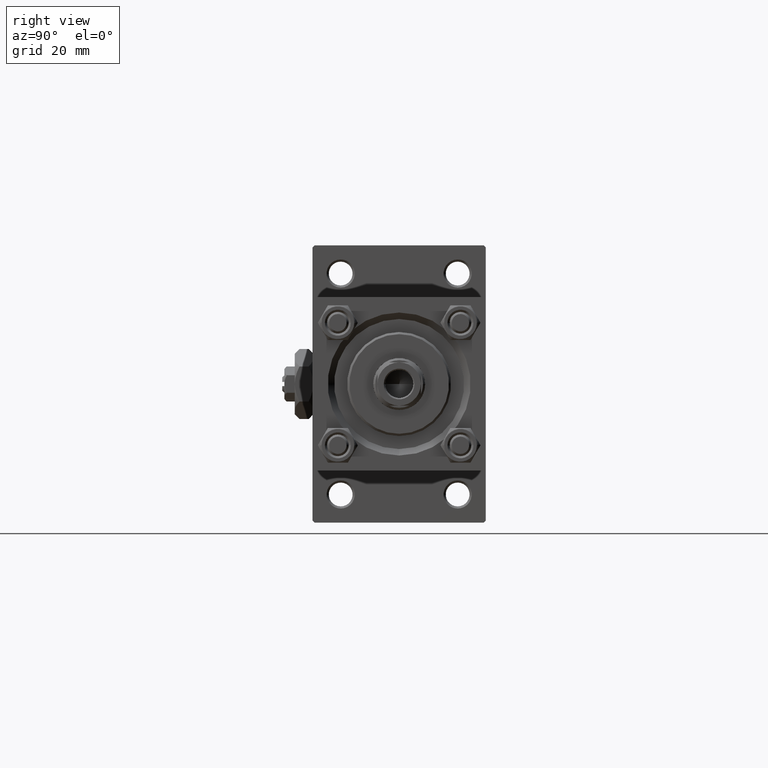
[diagram: clean part render]
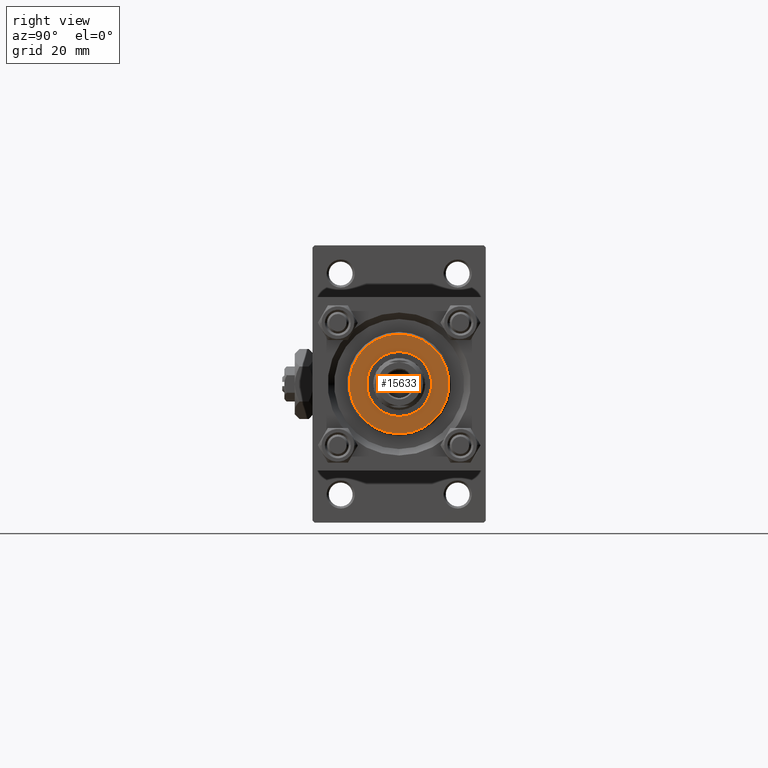
[diagram: same view with one face highlighted and labeled with its STEP entity id]
A machine part, right view. The second image highlights one B-rep face of the part: STEP entity #15633.
In plain terms, the highlighted planar face has unit normal (1, 0, 0).
Its self-contained STEP definition (entity closure, byte-faithful):
#2826 = ORIENTED_EDGE ( 'NONE', *, *, #48824, .T. ) ;
#3354 = CARTESIAN_POINT ( 'NONE',  ( -11.49999999999999645, 0.000000000000000000, 35.70000000000000284 ) ) ;
#5560 = DIRECTION ( 'NONE',  ( 1.000000000000000000, 0.000000000000000000, 0.000000000000000000 ) ) ;
#6486 = CARTESIAN_POINT ( 'NONE',  ( 11.49999999999999645, 1.438959988998139963E-15, 35.70000000000000284 ) ) ;
#6737 = ORIENTED_EDGE ( 'NONE', *, *, #31755, .F. ) ;
#7700 = AXIS2_PLACEMENT_3D ( 'NONE', #36107, #16521, #11845 ) ;
#8726 = DIRECTION ( 'NONE',  ( 1.000000000000000000, 0.000000000000000000, 0.000000000000000000 ) ) ;
#10145 = AXIS2_PLACEMENT_3D ( 'NONE', #26334, #10934, #26850 ) ;
#10934 = DIRECTION ( 'NONE',  ( 0.000000000000000000, 0.000000000000000000, 1.000000000000000000 ) ) ;
#11845 = DIRECTION ( 'NONE',  ( 1.000000000000000000, 0.000000000000000000, -0.000000000000000000 ) ) ;
#12037 = EDGE_CURVE ( 'NONE', #27153, #27952, #28430, .T. ) ;
#12619 = FACE_BOUND ( 'NONE', #19107, .T. ) ;
#15633 = ADVANCED_FACE ( 'NONE', ( #12619, #39502 ), #19654, .T. ) ;
#16521 = DIRECTION ( 'NONE',  ( 0.000000000000000000, 0.000000000000000000, 1.000000000000000000 ) ) ;
#19107 = EDGE_LOOP ( 'NONE', ( #6737, #37056 ) ) ;
#19231 = AXIS2_PLACEMENT_3D ( 'NONE', #29553, #25380, #5560 ) ;
#19654 = PLANE ( 'NONE',  #7700 ) ;
#20192 = CARTESIAN_POINT ( 'NONE',  ( 0.000000000000000000, 0.000000000000000000, 35.70000000000000284 ) ) ;
#20205 = CIRCLE ( 'NONE', #44400, 7.500000000000000888 ) ;
#22142 = CIRCLE ( 'NONE', #51313, 7.500000000000000888 ) ;
#22587 = CARTESIAN_POINT ( 'NONE',  ( -7.500000000000000888, 9.184850993605149917E-16, 35.70000000000000284 ) ) ;
#23590 = EDGE_CURVE ( 'NONE', #27461, #34823, #20205, .T. ) ;
#25380 = DIRECTION ( 'NONE',  ( 0.000000000000000000, 0.000000000000000000, 1.000000000000000000 ) ) ;
#26334 = CARTESIAN_POINT ( 'NONE',  ( 0.000000000000000000, 0.000000000000000000, 35.70000000000000284 ) ) ;
#26850 = DIRECTION ( 'NONE',  ( 1.000000000000000000, 0.000000000000000000, 0.000000000000000000 ) ) ;
#27153 = VERTEX_POINT ( 'NONE', #6486 ) ;
#27461 = VERTEX_POINT ( 'NONE', #22587 ) ;
#27952 = VERTEX_POINT ( 'NONE', #3354 ) ;
#28430 = CIRCLE ( 'NONE', #19231, 11.49999999999999645 ) ;
#28444 = CIRCLE ( 'NONE', #10145, 11.49999999999999645 ) ;
#29553 = CARTESIAN_POINT ( 'NONE',  ( 0.000000000000000000, 0.000000000000000000, 35.70000000000000284 ) ) ;
#29975 = CARTESIAN_POINT ( 'NONE',  ( 0.000000000000000000, 0.000000000000000000, 35.70000000000000284 ) ) ;
#31755 = EDGE_CURVE ( 'NONE', #34823, #27461, #22142, .T. ) ;
#33882 = DIRECTION ( 'NONE',  ( 0.000000000000000000, 0.000000000000000000, 1.000000000000000000 ) ) ;
#34823 = VERTEX_POINT ( 'NONE', #51449 ) ;
#36107 = CARTESIAN_POINT ( 'NONE',  ( 0.000000000000000000, 0.000000000000000000, 35.70000000000000284 ) ) ;
#36378 = DIRECTION ( 'NONE',  ( 0.000000000000000000, 0.000000000000000000, 1.000000000000000000 ) ) ;
#37056 = ORIENTED_EDGE ( 'NONE', *, *, #23590, .F. ) ;
#39502 = FACE_OUTER_BOUND ( 'NONE', #46545, .T. ) ;
#41709 = ORIENTED_EDGE ( 'NONE', *, *, #12037, .T. ) ;
#44400 = AXIS2_PLACEMENT_3D ( 'NONE', #29975, #33882, #45915 ) ;
#45915 = DIRECTION ( 'NONE',  ( 1.000000000000000000, 0.000000000000000000, 0.000000000000000000 ) ) ;
#46545 = EDGE_LOOP ( 'NONE', ( #2826, #41709 ) ) ;
#48824 = EDGE_CURVE ( 'NONE', #27952, #27153, #28444, .T. ) ;
#51313 = AXIS2_PLACEMENT_3D ( 'NONE', #20192, #36378, #8726 ) ;
#51449 = CARTESIAN_POINT ( 'NONE',  ( 7.500000000000000888, 0.000000000000000000, 35.70000000000000284 ) ) ;